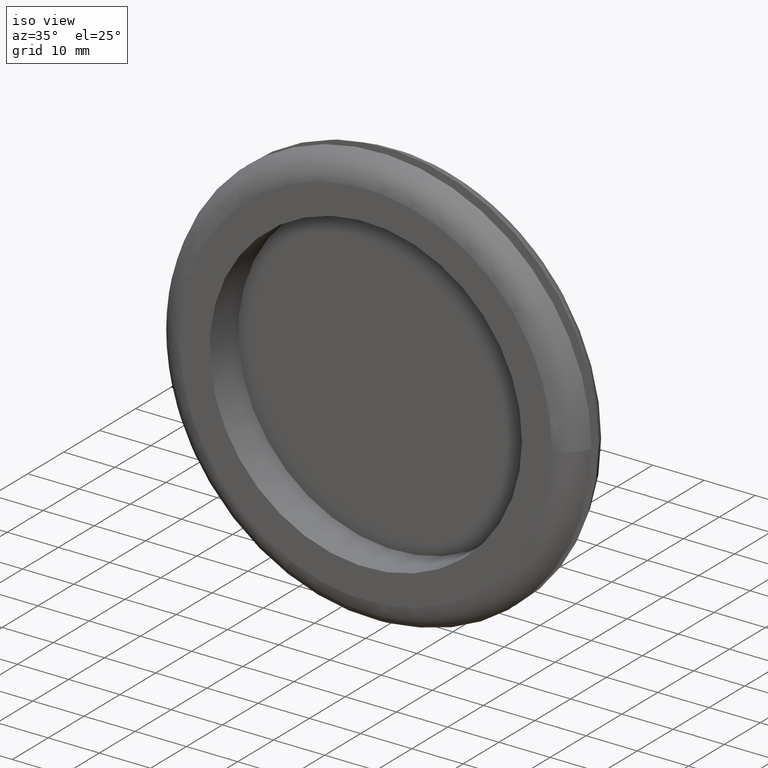
[diagram: clean part render]
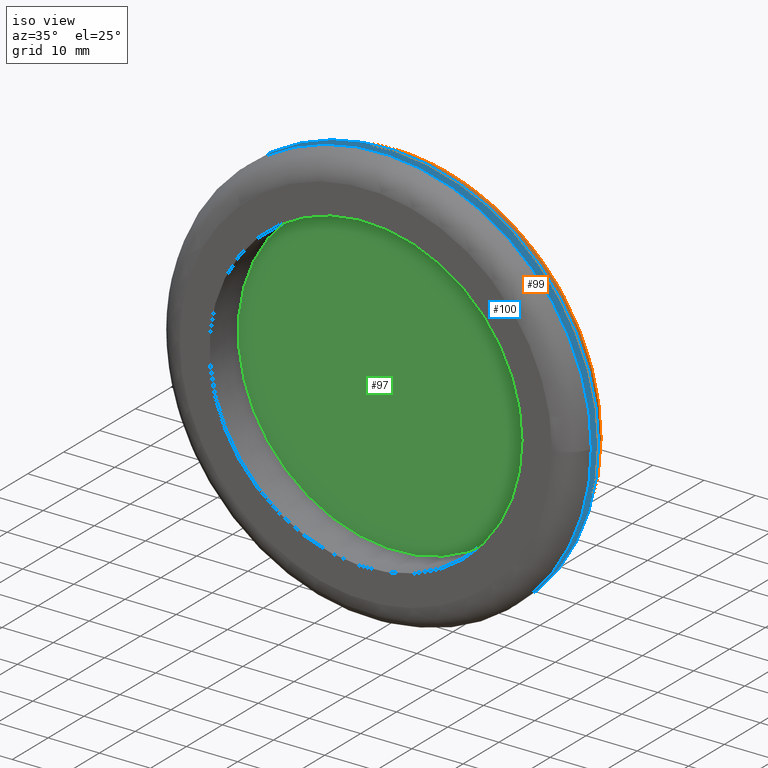
[diagram: same view with three faces highlighted in distinct colors, each labeled with its STEP entity id]
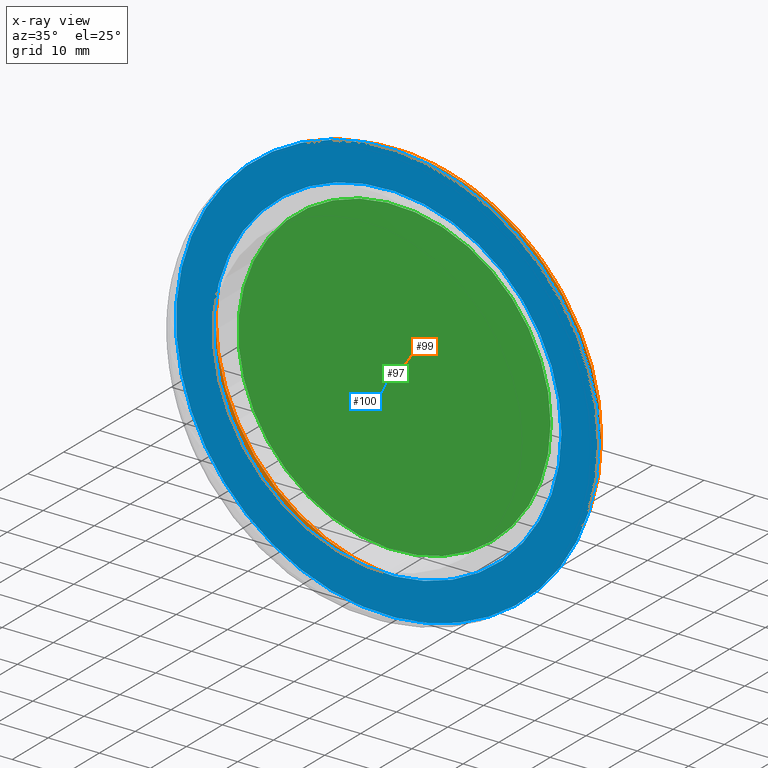
[diagram: x-ray of the same camera — body ghosted, the three highlighted faces saturated]
A machine part, iso view with three faces highlighted in distinct colors.
The next image is the same camera in x-ray (body ghosted, the three faces saturated) — at least one of them is partly hidden behind the body in this view.
Their STEP definitions:

[orange] entity #99 — the highlighted toroidal blend (fillet) surface has major radius 36.351 mm and minor (blend) radius 5 mm.
#15=TOROIDAL_SURFACE('',#113,36.3510205144336,5.);
#23=FACE_BOUND('',#43,.T.);
#32=FACE_OUTER_BOUND('',#42,.T.);
#42=EDGE_LOOP('',(#82));
#43=EDGE_LOOP('',(#83));
#56=CIRCLE('',#112,36.3510205144336);
#57=CIRCLE('',#114,41.25);
#64=VERTEX_POINT('',#168);
#65=VERTEX_POINT('',#171);
#72=EDGE_CURVE('',#64,#64,#56,.T.);
#73=EDGE_CURVE('',#65,#65,#57,.T.);
#82=ORIENTED_EDGE('',*,*,#72,.T.);
#83=ORIENTED_EDGE('',*,*,#73,.F.);
#99=ADVANCED_FACE('',(#32,#23),#15,.T.);
#112=AXIS2_PLACEMENT_3D('',#169,#136,#137);
#113=AXIS2_PLACEMENT_3D('',#170,#138,#139);
#114=AXIS2_PLACEMENT_3D('',#172,#140,#141);
#136=DIRECTION('center_axis',(0.,-1.,0.));
#137=DIRECTION('ref_axis',(1.,0.,0.));
#138=DIRECTION('center_axis',(0.,-1.,0.));
#139=DIRECTION('ref_axis',(0.,0.,-1.));
#140=DIRECTION('center_axis',(0.,-1.,0.));
#141=DIRECTION('ref_axis',(1.,0.,0.));
#168=CARTESIAN_POINT('',(36.3510205144336,10.,0.));
#169=CARTESIAN_POINT('Origin',(0.,10.,0.));
#170=CARTESIAN_POINT('Origin',(0.,5.,0.));
#171=CARTESIAN_POINT('',(41.25,6.,0.));
#172=CARTESIAN_POINT('Origin',(0.,6.,0.));

[blue] entity #100 — the highlighted planar face has unit normal (0, -1, 0).
#19=PLANE('',#115);
#24=FACE_BOUND('',#45,.T.);
#33=FACE_OUTER_BOUND('',#44,.T.);
#44=EDGE_LOOP('',(#84));
#45=EDGE_LOOP('',(#85));
#57=CIRCLE('',#114,41.25);
#58=CIRCLE('',#116,34.);
#65=VERTEX_POINT('',#171);
#66=VERTEX_POINT('',#174);
#73=EDGE_CURVE('',#65,#65,#57,.T.);
#74=EDGE_CURVE('',#66,#66,#58,.T.);
#84=ORIENTED_EDGE('',*,*,#73,.T.);
#85=ORIENTED_EDGE('',*,*,#74,.F.);
#100=ADVANCED_FACE('',(#33,#24),#19,.T.);
#114=AXIS2_PLACEMENT_3D('',#172,#140,#141);
#115=AXIS2_PLACEMENT_3D('',#173,#142,#143);
#116=AXIS2_PLACEMENT_3D('',#175,#144,#145);
#140=DIRECTION('center_axis',(0.,-1.,0.));
#141=DIRECTION('ref_axis',(1.,0.,0.));
#142=DIRECTION('center_axis',(0.,-1.,0.));
#143=DIRECTION('ref_axis',(0.,0.,-1.));
#144=DIRECTION('center_axis',(0.,-1.,0.));
#145=DIRECTION('ref_axis',(1.,0.,0.));
#171=CARTESIAN_POINT('',(41.25,6.,0.));
#172=CARTESIAN_POINT('Origin',(0.,6.,0.));
#173=CARTESIAN_POINT('Origin',(34.,6.,0.));
#174=CARTESIAN_POINT('',(34.,6.,0.));
#175=CARTESIAN_POINT('Origin',(0.,6.,0.));

[green] entity #97 — the highlighted planar face has unit normal (0, 1, 0).
#17=PLANE('',#110);
#30=FACE_OUTER_BOUND('',#40,.T.);
#40=EDGE_LOOP('',(#80));
#54=CIRCLE('',#108,30.5);
#62=VERTEX_POINT('',#162);
#70=EDGE_CURVE('',#62,#62,#54,.T.);
#80=ORIENTED_EDGE('',*,*,#70,.F.);
#97=ADVANCED_FACE('',(#30),#17,.F.);
#108=AXIS2_PLACEMENT_3D('',#163,#128,#129);
#110=AXIS2_PLACEMENT_3D('',#166,#132,#133);
#128=DIRECTION('center_axis',(0.,1.,0.));
#129=DIRECTION('ref_axis',(-1.,0.,0.));
#132=DIRECTION('center_axis',(0.,1.,0.));
#133=DIRECTION('ref_axis',(0.,0.,1.));
#162=CARTESIAN_POINT('',(30.5,8.,3.73517273739943E-15));
#163=CARTESIAN_POINT('Origin',(0.,8.,0.));
#166=CARTESIAN_POINT('Origin',(-1.28195119226976E-15,8.,4.85343398743238E-16));